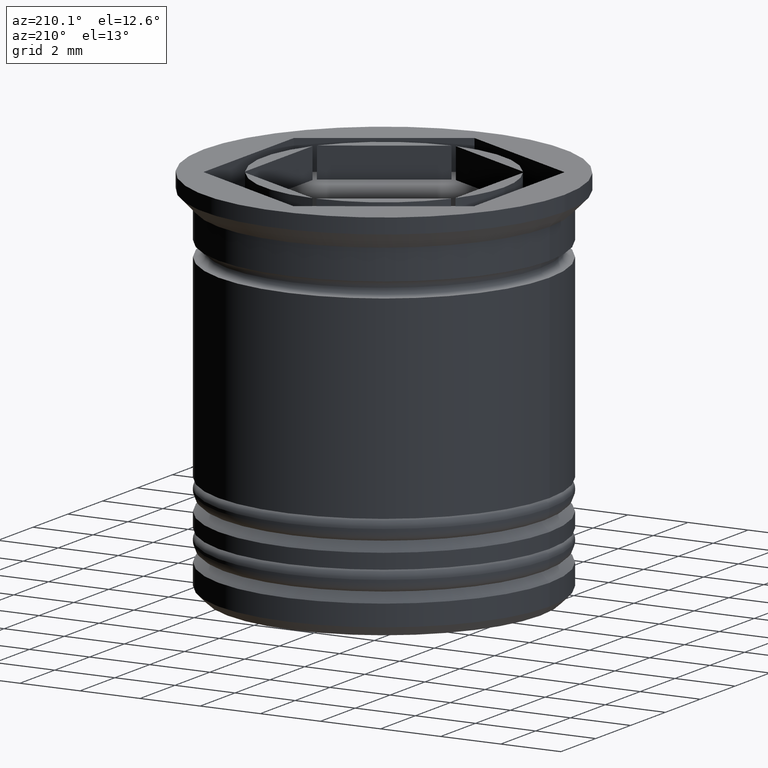
[diagram: clean part render]
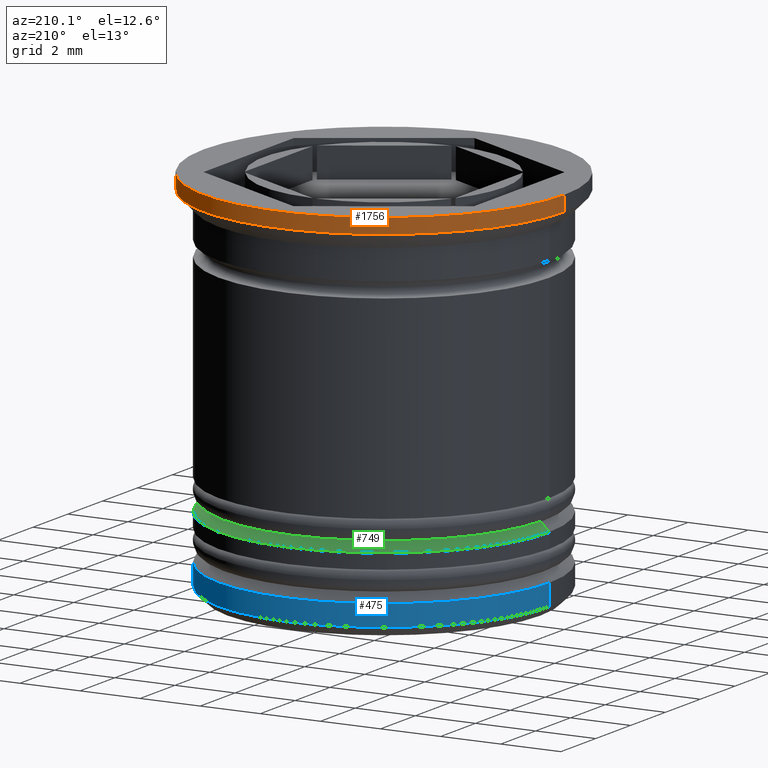
[diagram: same view with three faces highlighted in distinct colors, each labeled with its STEP entity id]
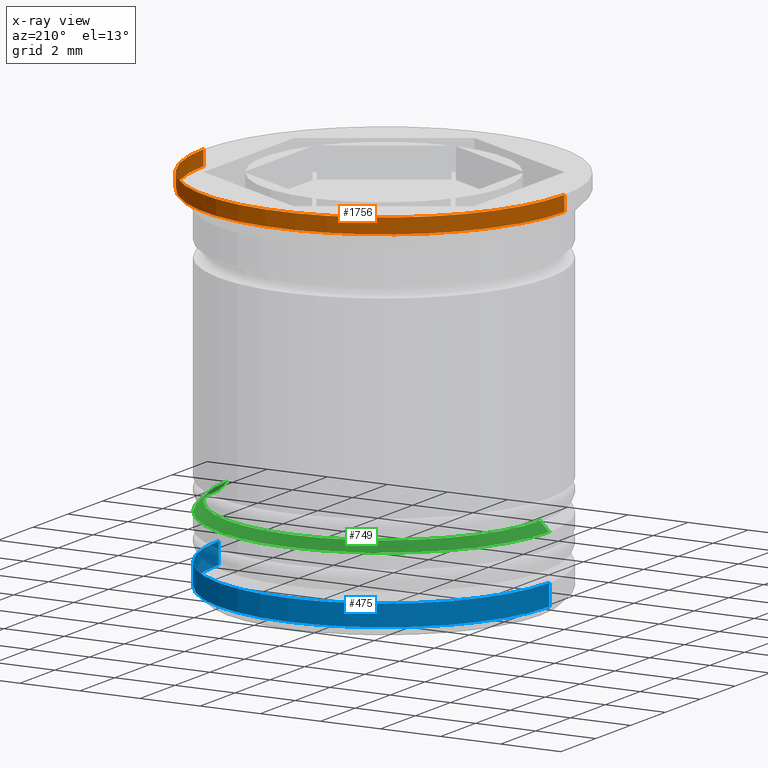
[diagram: x-ray of the same camera — body ghosted, the three highlighted faces saturated]
A machine part, auxiliary view with three faces highlighted in distinct colors.
The next image is the same camera in x-ray (body ghosted, the three faces saturated) — at least one of them is partly hidden behind the body in this view.
Their STEP definitions:

[orange] entity #1756 — the highlighted cylindrical surface (partial cylindrical patch) has radius 6 mm, axis along (-0, -0, 1).
#21 = DIRECTION ( 'NONE',  ( -0.000000000000000000, -0.000000000000000000, 1.000000000000000000 ) ) ;
#22 = CARTESIAN_POINT ( 'NONE',  ( 0.000000000000000000, 0.000000000000000000, -0.4999999999999982792 ) ) ;
#43 = VERTEX_POINT ( 'NONE', #1882 ) ;
#65 = DIRECTION ( 'NONE',  ( -0.000000000000000000, -0.000000000000000000, 1.000000000000000000 ) ) ;
#139 = CARTESIAN_POINT ( 'NONE',  ( 6.000000000000000000, 0.000000000000000000, -0.4999999999999982792 ) ) ;
#149 = LINE ( 'NONE', #1239, #1866 ) ;
#218 = CARTESIAN_POINT ( 'NONE',  ( 0.000000000000000000, 0.000000000000000000, 0.000000000000000000 ) ) ;
#220 = VERTEX_POINT ( 'NONE', #139 ) ;
#268 = AXIS2_PLACEMENT_3D ( 'NONE', #22, #65, #881 ) ;
#306 = EDGE_LOOP ( 'NONE', ( #1131, #1881, #1052, #1494 ) ) ;
#418 = FACE_OUTER_BOUND ( 'NONE', #306, .T. ) ;
#421 = DIRECTION ( 'NONE',  ( -0.000000000000000000, -0.000000000000000000, 1.000000000000000000 ) ) ;
#526 = CIRCLE ( 'NONE', #268, 6.000000000000000000 ) ;
#575 = DIRECTION ( 'NONE',  ( 1.000000000000000000, 0.000000000000000000, 0.000000000000000000 ) ) ;
#732 = AXIS2_PLACEMENT_3D ( 'NONE', #218, #21, #1887 ) ;
#756 = EDGE_CURVE ( 'NONE', #777, #872, #1230, .T. ) ;
#777 = VERTEX_POINT ( 'NONE', #789 ) ;
#789 = CARTESIAN_POINT ( 'NONE',  ( -6.000000000000000000, 7.347880794884119736E-16, -0.4999999999999982792 ) ) ;
#850 = CIRCLE ( 'NONE', #880, 6.000000000000000000 ) ;
#872 = VERTEX_POINT ( 'NONE', #1742 ) ;
#880 = AXIS2_PLACEMENT_3D ( 'NONE', #1031, #421, #575 ) ;
#881 = DIRECTION ( 'NONE',  ( -1.000000000000000000, 0.000000000000000000, 0.000000000000000000 ) ) ;
#1031 = CARTESIAN_POINT ( 'NONE',  ( 0.000000000000000000, 0.000000000000000000, 0.000000000000000000 ) ) ;
#1052 = ORIENTED_EDGE ( 'NONE', *, *, #1430, .F. ) ;
#1131 = ORIENTED_EDGE ( 'NONE', *, *, #1643, .T. ) ;
#1197 = CYLINDRICAL_SURFACE ( 'NONE', #732, 6.000000000000000000 ) ;
#1224 = DIRECTION ( 'NONE',  ( -0.000000000000000000, -0.000000000000000000, 1.000000000000000000 ) ) ;
#1225 = EDGE_CURVE ( 'NONE', #220, #43, #149, .T. ) ;
#1230 = LINE ( 'NONE', #1407, #1711 ) ;
#1239 = CARTESIAN_POINT ( 'NONE',  ( 6.000000000000000000, 0.000000000000000000, 0.000000000000000000 ) ) ;
#1407 = CARTESIAN_POINT ( 'NONE',  ( -6.000000000000000000, 7.347880794884119736E-16, 0.000000000000000000 ) ) ;
#1430 = EDGE_CURVE ( 'NONE', #43, #872, #850, .T. ) ;
#1494 = ORIENTED_EDGE ( 'NONE', *, *, #1225, .F. ) ;
#1643 = EDGE_CURVE ( 'NONE', #220, #777, #526, .T. ) ;
#1711 = VECTOR ( 'NONE', #1224, 1000.000000000000000 ) ;
#1742 = CARTESIAN_POINT ( 'NONE',  ( -6.000000000000000000, 7.347880794884119736E-16, 0.000000000000000000 ) ) ;
#1756 = ADVANCED_FACE ( 'NONE', ( #418 ), #1197, .T. ) ;
#1866 = VECTOR ( 'NONE', #1984, 1000.000000000000000 ) ;
#1881 = ORIENTED_EDGE ( 'NONE', *, *, #756, .T. ) ;
#1882 = CARTESIAN_POINT ( 'NONE',  ( 6.000000000000000000, 0.000000000000000000, 0.000000000000000000 ) ) ;
#1887 = DIRECTION ( 'NONE',  ( 1.000000000000000000, 0.000000000000000000, 0.000000000000000000 ) ) ;
#1984 = DIRECTION ( 'NONE',  ( -0.000000000000000000, -0.000000000000000000, 1.000000000000000000 ) ) ;

[blue] entity #475 — the highlighted cylindrical surface (partial cylindrical patch) has radius 5.5 mm, axis along (-0, -0, 1).
#41 = FACE_OUTER_BOUND ( 'NONE', #1321, .T. ) ;
#115 = CARTESIAN_POINT ( 'NONE',  ( 5.500000000000001776, 0.000000000000000000, -12.19999999999999574 ) ) ;
#128 = AXIS2_PLACEMENT_3D ( 'NONE', #501, #1413, #546 ) ;
#180 = CARTESIAN_POINT ( 'NONE',  ( -5.500000000000001776, 6.735557395310443995E-16, 0.000000000000000000 ) ) ;
#323 = AXIS2_PLACEMENT_3D ( 'NONE', #801, #1302, #1450 ) ;
#345 = DIRECTION ( 'NONE',  ( -0.000000000000000000, -0.000000000000000000, 1.000000000000000000 ) ) ;
#427 = CARTESIAN_POINT ( 'NONE',  ( 5.500000000000001776, 0.000000000000000000, -11.50000000000000533 ) ) ;
#459 = VECTOR ( 'NONE', #345, 1000.000000000000000 ) ;
#475 = ADVANCED_FACE ( 'NONE', ( #41 ), #666, .T. ) ;
#487 = CIRCLE ( 'NONE', #323, 5.500000000000001776 ) ;
#501 = CARTESIAN_POINT ( 'NONE',  ( 0.000000000000000000, 0.000000000000000000, -11.50000000000000533 ) ) ;
#534 = VERTEX_POINT ( 'NONE', #115 ) ;
#546 = DIRECTION ( 'NONE',  ( -1.000000000000000000, 0.000000000000000000, 0.000000000000000000 ) ) ;
#555 = VERTEX_POINT ( 'NONE', #427 ) ;
#614 = VERTEX_POINT ( 'NONE', #1027 ) ;
#666 = CYLINDRICAL_SURFACE ( 'NONE', #1415, 5.500000000000001776 ) ;
#765 = ORIENTED_EDGE ( 'NONE', *, *, #900, .T. ) ;
#801 = CARTESIAN_POINT ( 'NONE',  ( 0.000000000000000000, 0.000000000000000000, -12.19999999999999574 ) ) ;
#827 = EDGE_CURVE ( 'NONE', #534, #614, #487, .T. ) ;
#878 = EDGE_CURVE ( 'NONE', #1615, #555, #1332, .T. ) ;
#900 = EDGE_CURVE ( 'NONE', #614, #1615, #973, .T. ) ;
#963 = CARTESIAN_POINT ( 'NONE',  ( -5.500000000000001776, 6.735557395310443995E-16, -11.50000000000000533 ) ) ;
#973 = LINE ( 'NONE', #180, #459 ) ;
#1027 = CARTESIAN_POINT ( 'NONE',  ( -5.500000000000001776, 6.735557395310443995E-16, -12.19999999999999574 ) ) ;
#1176 = VECTOR ( 'NONE', #1792, 1000.000000000000000 ) ;
#1302 = DIRECTION ( 'NONE',  ( -0.000000000000000000, -0.000000000000000000, 1.000000000000000000 ) ) ;
#1321 = EDGE_LOOP ( 'NONE', ( #1584, #765, #1358, #1605 ) ) ;
#1332 = CIRCLE ( 'NONE', #128, 5.500000000000001776 ) ;
#1344 = CARTESIAN_POINT ( 'NONE',  ( 5.500000000000001776, 0.000000000000000000, 0.000000000000000000 ) ) ;
#1358 = ORIENTED_EDGE ( 'NONE', *, *, #878, .T. ) ;
#1413 = DIRECTION ( 'NONE',  ( 0.000000000000000000, 0.000000000000000000, -1.000000000000000000 ) ) ;
#1415 = AXIS2_PLACEMENT_3D ( 'NONE', #1886, #1920, #1894 ) ;
#1444 = EDGE_CURVE ( 'NONE', #534, #555, #1665, .T. ) ;
#1450 = DIRECTION ( 'NONE',  ( -1.000000000000000000, 0.000000000000000000, 0.000000000000000000 ) ) ;
#1584 = ORIENTED_EDGE ( 'NONE', *, *, #827, .T. ) ;
#1605 = ORIENTED_EDGE ( 'NONE', *, *, #1444, .F. ) ;
#1615 = VERTEX_POINT ( 'NONE', #963 ) ;
#1665 = LINE ( 'NONE', #1344, #1176 ) ;
#1792 = DIRECTION ( 'NONE',  ( -0.000000000000000000, -0.000000000000000000, 1.000000000000000000 ) ) ;
#1886 = CARTESIAN_POINT ( 'NONE',  ( 0.000000000000000000, 0.000000000000000000, 0.000000000000000000 ) ) ;
#1894 = DIRECTION ( 'NONE',  ( 1.000000000000000000, 0.000000000000000000, 0.000000000000000000 ) ) ;
#1920 = DIRECTION ( 'NONE',  ( -0.000000000000000000, -0.000000000000000000, 1.000000000000000000 ) ) ;

[green] entity #749 — the highlighted conical surface has half-angle 45 deg.
#12 = DIRECTION ( 'NONE',  ( -1.000000000000000000, 0.000000000000000000, 0.000000000000000000 ) ) ;
#32 = DIRECTION ( 'NONE',  ( -0.000000000000000000, -0.000000000000000000, 1.000000000000000000 ) ) ;
#35 = VERTEX_POINT ( 'NONE', #1446 ) ;
#71 = DIRECTION ( 'NONE',  ( 0.000000000000000000, 0.000000000000000000, -1.000000000000000000 ) ) ;
#257 = EDGE_LOOP ( 'NONE', ( #390, #1159, #624, #431 ) ) ;
#275 = EDGE_CURVE ( 'NONE', #1719, #1913, #1360, .T. ) ;
#318 = CARTESIAN_POINT ( 'NONE',  ( 0.000000000000000000, 0.000000000000000000, -9.500000000000001776 ) ) ;
#330 = DIRECTION ( 'NONE',  ( -1.000000000000000000, 0.000000000000000000, 0.000000000000000000 ) ) ;
#390 = ORIENTED_EDGE ( 'NONE', *, *, #275, .F. ) ;
#431 = ORIENTED_EDGE ( 'NONE', *, *, #934, .F. ) ;
#439 = LINE ( 'NONE', #889, #964 ) ;
#456 = AXIS2_PLACEMENT_3D ( 'NONE', #645, #32, #330 ) ;
#522 = AXIS2_PLACEMENT_3D ( 'NONE', #1002, #71, #706 ) ;
#597 = EDGE_CURVE ( 'NONE', #1719, #1245, #439, .T. ) ;
#624 = ORIENTED_EDGE ( 'NONE', *, *, #841, .F. ) ;
#643 = CARTESIAN_POINT ( 'NONE',  ( -5.200000000000000178, 6.368163355566236381E-16, -9.700000000000006395 ) ) ;
#645 = CARTESIAN_POINT ( 'NONE',  ( 0.000000000000000000, 0.000000000000000000, -9.700000000000006395 ) ) ;
#706 = DIRECTION ( 'NONE',  ( -1.000000000000000000, 0.000000000000000000, 0.000000000000000000 ) ) ;
#739 = CARTESIAN_POINT ( 'NONE',  ( 5.200000000000000178, 0.000000000000000000, -9.700000000000006395 ) ) ;
#749 = ADVANCED_FACE ( 'NONE', ( #1561 ), #845, .T. ) ;
#794 = DIRECTION ( 'NONE',  ( 0.000000000000000000, 0.000000000000000000, -1.000000000000000000 ) ) ;
#834 = CARTESIAN_POINT ( 'NONE',  ( -4.999999999999992006, 0.000000000000000000, -9.500000000000001776 ) ) ;
#841 = EDGE_CURVE ( 'NONE', #35, #1245, #999, .T. ) ;
#845 = CONICAL_SURFACE ( 'NONE', #1066, 4.999999999999992006, 0.7853981633974533860 ) ;
#889 = CARTESIAN_POINT ( 'NONE',  ( 4.999999999999992006, 6.123233995736756422E-16, -9.500000000000001776 ) ) ;
#934 = EDGE_CURVE ( 'NONE', #1913, #35, #1919, .T. ) ;
#964 = VECTOR ( 'NONE', #1017, 1000.000000000000000 ) ;
#999 = CIRCLE ( 'NONE', #522, 5.500000000000001776 ) ;
#1002 = CARTESIAN_POINT ( 'NONE',  ( 0.000000000000000000, 0.000000000000000000, -10.00000000000000533 ) ) ;
#1017 = DIRECTION ( 'NONE',  ( 0.7071067811865512365, 8.659560562354978464E-17, -0.7071067811865439090 ) ) ;
#1066 = AXIS2_PLACEMENT_3D ( 'NONE', #318, #794, #12 ) ;
#1159 = ORIENTED_EDGE ( 'NONE', *, *, #597, .T. ) ;
#1245 = VERTEX_POINT ( 'NONE', #1979 ) ;
#1360 = CIRCLE ( 'NONE', #456, 5.200000000000000178 ) ;
#1446 = CARTESIAN_POINT ( 'NONE',  ( -5.500000000000001776, 6.735557395310443995E-16, -10.00000000000000533 ) ) ;
#1561 = FACE_OUTER_BOUND ( 'NONE', #257, .T. ) ;
#1656 = VECTOR ( 'NONE', #1772, 1000.000000000000000 ) ;
#1719 = VERTEX_POINT ( 'NONE', #739 ) ;
#1772 = DIRECTION ( 'NONE',  ( -0.7071067811865512365, 0.000000000000000000, -0.7071067811865439090 ) ) ;
#1913 = VERTEX_POINT ( 'NONE', #643 ) ;
#1919 = LINE ( 'NONE', #834, #1656 ) ;
#1979 = CARTESIAN_POINT ( 'NONE',  ( 5.500000000000001776, 0.000000000000000000, -10.00000000000000533 ) ) ;